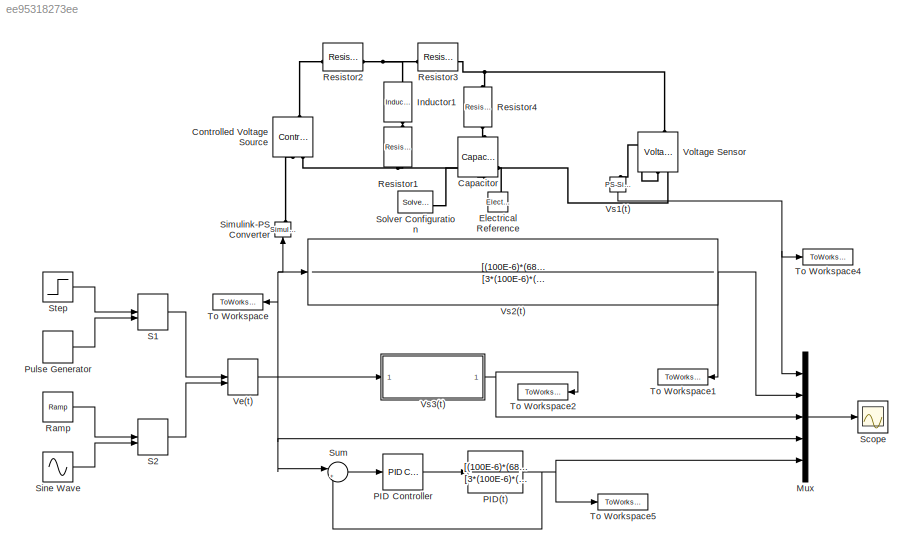
MODEL slx_ee95318273ee
KIND model
CONFIG AbsTol = auto
CONFIG EnableMultiTasking = off
CONFIG FixedStep = auto
CONFIG MaxStep = auto
CONFIG MinStep = auto
CONFIG RelTol = 1e-3
CONFIG SampleTimeConstraint = Unconstrained
CONFIG SolverName = ode23t
CONFIG StartTime = 0.0
CONFIG StopTime = 10.0
BLOCK [Reference] Capacitor  REF=fl_lib/Electrical/Electrical Elements/Capacitor
  NameLocation = left
  SourceBlock = fl_lib/Electrical/Electrical Elements/Capacitor
  SourceType = Capacitor
BLOCK [Reference] Controlled Voltage Source  REF=fl_lib/Electrical/Electrical Sources/Controlled Voltage
Source
  NameLocation = right
  SourceBlock = fl_lib/Electrical/Electrical Sources/Controlled Voltage\nSource
  SourceType = Controlled Voltage\nSource
BLOCK [Reference] Electrical Reference  REF=fl_lib/Electrical/Electrical Elements/Electrical Reference
  LibrarySourceBlock = ee_lib/Connectors &\nReferences/Electrical Reference
  NameLocation = right
  SourceBlock = fl_lib/Electrical/Electrical Elements/Electrical Reference
  SourceType = Electrical Reference
BLOCK [Reference] Inductor1  REF=ee_lib/Passive/Inductor
  NameLocation = left
  SourceBlock = ee_lib/Passive/Inductor
  SourceType = Inductor
BLOCK [Mux] Mux
  DisplayOption = bar
  Inputs = 5
BLOCK [Reference] PID Controller  REF=slpidlib/PID Controller
  LibrarySourceBlock = simulink/Continuous/PID Controller
  SourceBlock = slpidlib/PID Controller
  SourceType = PID 1dof
BLOCK [TransferFcn] PID(t)
  Denominator = [3*(100E-6)*(68E-6)*(1E3), (5*(100E-6)*(1E3)^2+ (68E-6)), 2*(1E3)]
  Numerator = [(100E-6)*(68E-6)*(1E3),((100E-6)*((1E3)^2)+(68E-6)),1E3]
BLOCK [DiscretePulseGenerator] Pulse Generator
  Period = 10
  PhaseDelay = 1
  PulseType = Time based
  PulseWidth = 10
BLOCK [Reference] Ramp  REF=simulink/Sources/Ramp
  SourceBlock = simulink/Sources/Ramp
  SourceType = Ramp
BLOCK [Reference] Resistor1  REF=fl_lib/Electrical/Electrical Elements/Resistor
  NameLocation = left
  SourceBlock = fl_lib/Electrical/Electrical Elements/Resistor
  SourceType = Resistor
BLOCK [Reference] Resistor2  REF=fl_lib/Electrical/Electrical Elements/Resistor
  SourceBlock = fl_lib/Electrical/Electrical Elements/Resistor
  SourceType = Resistor
BLOCK [Reference] Resistor3  REF=fl_lib/Electrical/Electrical Elements/Resistor
  SourceBlock = fl_lib/Electrical/Electrical Elements/Resistor
  SourceType = Resistor
BLOCK [Reference] Resistor4  REF=fl_lib/Electrical/Electrical Elements/Resistor
  NameLocation = left
  SourceBlock = fl_lib/Electrical/Electrical Elements/Resistor
  SourceType = Resistor
BLOCK [ManualSwitch] S1
  CurrentSetting = 0
BLOCK [ManualSwitch] S2
  CurrentSetting = 0
BLOCK [Scope] Scope
  Floating = off
  NumInputPorts = 1
  ScopeSpecificationString = Simulink.scopes.TimeScopeBlockCfg('CurrentConfiguration', extmgr.ConfigurationSet(extmgr.Configuration('Core','General UI',true,'FigureColor',[1 1 1]),extmgr.Configuration('Core','Source UI',true),extmgr.Configuration('Sources','WiredSimulink',true),extmgr.Configuration('Visuals','Time Domain',true,'SerializedDisplays',{struct('MinYLimReal','0.72096','MaxYLimReal','1.03569','YLabelReal','','MinYLi...<+1749ch>
BLOCK [Reference] Simulink-PS Converter  REF=nesl_utility/Simulink-PS
Converter
  NameLocation = right
  SourceBlock = nesl_utility/Simulink-PS\nConverter
  SourceType = Simulink-PS\nConverter
BLOCK [Sin] Sine Wave
  Frequency = pi/2
  SampleTime = 0
BLOCK [Reference] Solver Configuration  REF=nesl_utility/Solver
Configuration
  SourceBlock = nesl_utility/Solver\nConfiguration
  SourceType = Solver\nConfiguration
BLOCK [Step] Step
  Before = 1
  SampleTime = 0
  Time = 0
BLOCK [Sum] Sum
  Inputs = |+-
BLOCK [ToWorkspace] To Workspace
  FixptAsFi = on
  MaxDataPoints = inf
  NameLocation = top
  SampleTime = -1
  VariableName = Ve
BLOCK [ToWorkspace] To Workspace1
  FixptAsFi = on
  MaxDataPoints = inf
  NameLocation = top
  SampleTime = -1
  VariableName = Vs2
BLOCK [ToWorkspace] To Workspace2
  FixptAsFi = on
  MaxDataPoints = inf
  NameLocation = top
  SampleTime = -1
  VariableName = Vs3
BLOCK [ToWorkspace] To Workspace4
  FixptAsFi = on
  MaxDataPoints = inf
  SampleTime = -1
  VariableName = Vs1
BLOCK [ToWorkspace] To Workspace5
  FixptAsFi = on
  MaxDataPoints = inf
  SampleTime = -1
  VariableName = PID
BLOCK [ManualSwitch] Ve(t)
  CurrentSetting = 0
BLOCK [Reference] Voltage Sensor  REF=fl_lib/Electrical/Electrical Sensors/Voltage Sensor
  NameLocation = right
  SourceBlock = fl_lib/Electrical/Electrical Sensors/Voltage Sensor
  SourceType = Voltage Sensor
BLOCK [Reference] Vs1(t)  REF=nesl_utility/PS-Simulink
Converter
  NameLocation = left
  SourceBlock = nesl_utility/PS-Simulink\nConverter
  SourceType = PS-Simulink\nConverter
BLOCK [TransferFcn] Vs2(t)
  Denominator = [3*(100E-6)*(68E-6)*(1E3), (5*(100E-6)*(1E3)^2+ (68E-6)), 2*(1E3)]
  Numerator = [(100E-6)*(68E-6)*(1E3),((100E-6)*((1E3)^2)+(68E-6)),1E3]
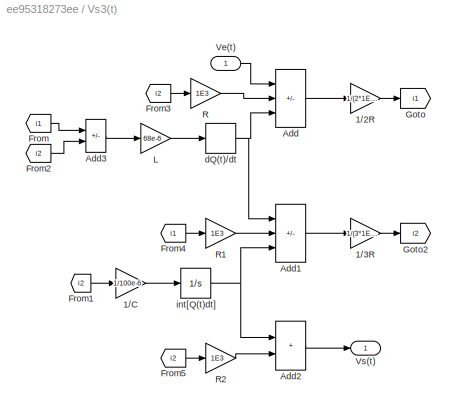
BLOCK [SubSystem] Vs3(t)
BLOCK [Gain] Vs3(t)/1//2R
  Gain = 1/(2*1E3)
BLOCK [Gain] Vs3(t)/1//3R
  Gain = 1/(3*1E3)
BLOCK [Gain] Vs3(t)/1//C
  Gain = 1/100e-6
BLOCK [Sum] Vs3(t)/Add
  IconShape = rectangular
  Inputs = ++-
BLOCK [Sum] Vs3(t)/Add1
  IconShape = rectangular
  Inputs = ++-
BLOCK [Sum] Vs3(t)/Add2
  IconShape = rectangular
BLOCK [Sum] Vs3(t)/Add3
  IconShape = rectangular
  Inputs = +-
BLOCK [From] Vs3(t)/From
  GotoTag = i1
BLOCK [From] Vs3(t)/From1
  GotoTag = i2
BLOCK [From] Vs3(t)/From2
  GotoTag = i2
BLOCK [From] Vs3(t)/From3
  GotoTag = i2
BLOCK [From] Vs3(t)/From4
  GotoTag = i1
BLOCK [From] Vs3(t)/From5
  GotoTag = i2
BLOCK [Goto] Vs3(t)/Goto
  GotoTag = i1
BLOCK [Goto] Vs3(t)/Goto2
  GotoTag = i2
BLOCK [Gain] Vs3(t)/L
  Gain = 68e-6
BLOCK [Gain] Vs3(t)/R
  Gain = 1E3
BLOCK [Gain] Vs3(t)/R1
  Gain = 1E3
BLOCK [Gain] Vs3(t)/R2
  Gain = 1E3
BLOCK [Inport] Vs3(t)/Ve(t)
BLOCK [Outport] Vs3(t)/Vs(t)
BLOCK [Derivative] Vs3(t)/dQ(t)//dt
BLOCK [Integrator] Vs3(t)/int[Q(t)dt]
LINE Mux:1 -> Scope:1
LINE PID Controller:1 -> PID(t):1
NET PID(t):1 -> Mux:5, Sum:2, To Workspace5:1
LINE Pulse Generator:1 -> S1:2
LINE Ramp:1 -> S2:1
LINE S1:1 -> Ve(t):1
LINE S2:1 -> Ve(t):2
LINE Sine Wave:1 -> S2:2
LINE Step:1 -> S1:1
LINE Sum:1 -> PID Controller:1
NET Ve(t):1 -> Mux:4, Simulink-PS Converter:1, Sum:1, To Workspace:1, Vs2(t):1, Vs3(t):1
NET Vs1(t):1 -> Mux:1, To Workspace4:1
NET Vs2(t):1 -> Mux:2, To Workspace1:1
LINE Vs3(t)/1//2R:1 -> Vs3(t)/Goto:1
LINE Vs3(t)/1//3R:1 -> Vs3(t)/Goto2:1
LINE Vs3(t)/1//C:1 -> Vs3(t)/int[Q(t)dt]:1
LINE Vs3(t)/Add1:1 -> Vs3(t)/1//3R:1
LINE Vs3(t)/Add2:1 -> Vs3(t)/Vs(t):1
LINE Vs3(t)/Add3:1 -> Vs3(t)/L:1
LINE Vs3(t)/Add:1 -> Vs3(t)/1//2R:1
LINE Vs3(t)/From1:1 -> Vs3(t)/1//C:1
LINE Vs3(t)/From2:1 -> Vs3(t)/Add3:2
LINE Vs3(t)/From3:1 -> Vs3(t)/R:1
LINE Vs3(t)/From4:1 -> Vs3(t)/R1:1
LINE Vs3(t)/From5:1 -> Vs3(t)/R2:1
LINE Vs3(t)/From:1 -> Vs3(t)/Add3:1
LINE Vs3(t)/L:1 -> Vs3(t)/dQ(t)//dt:1
LINE Vs3(t)/R1:1 -> Vs3(t)/Add1:2
LINE Vs3(t)/R2:1 -> Vs3(t)/Add2:2
LINE Vs3(t)/R:1 -> Vs3(t)/Add:2
LINE Vs3(t)/Ve(t):1 -> Vs3(t)/Add:1
NET Vs3(t)/dQ(t)//dt:1 -> Vs3(t)/Add1:1, Vs3(t)/Add:3
NET Vs3(t)/int[Q(t)dt]:1 -> Vs3(t)/Add1:3, Vs3(t)/Add2:1
NET Vs3(t):1 -> Mux:3, To Workspace2:1
PLINE Capacitor:LConn1 -- Resistor4:RConn1
PNET net1: Capacitor:RConn1 -- Controlled Voltage Source:RConn2 -- Electrical Reference:LConn1 -- Resistor1:RConn1 -- Solver Configuration:RConn1 -- Voltage Sensor:RConn2
PLINE Controlled Voltage Source:LConn1 -- Resistor2:LConn1
PLINE Controlled Voltage Source:RConn1 -- Simulink-PS Converter:RConn1
PNET net2: Inductor1:LConn1 -- Resistor2:RConn1 -- Resistor3:LConn1
PLINE Inductor1:RConn1 -- Resistor1:LConn1
PNET net3: Resistor3:RConn1 -- Resistor4:LConn1 -- Voltage Sensor:LConn1
PLINE Voltage Sensor:RConn1 -- Vs1(t):LConn1
note: NET lines group one-source signal fan-out (src -> all destinations, sorted); 1:1 wires keep LINE; PNET lines group multi-terminal physical nets as a canonical sorted terminal list (undirected conserving connections); 2-terminal nets keep the pairwise PLINE form
